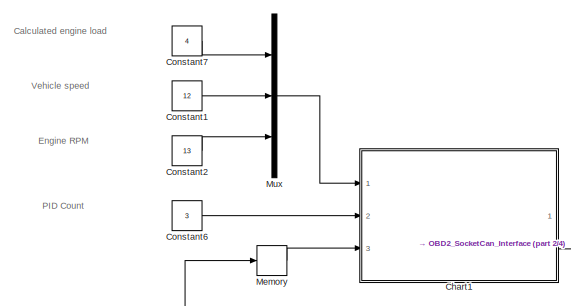
[diagram: root canvas - part 1/4, top left region]
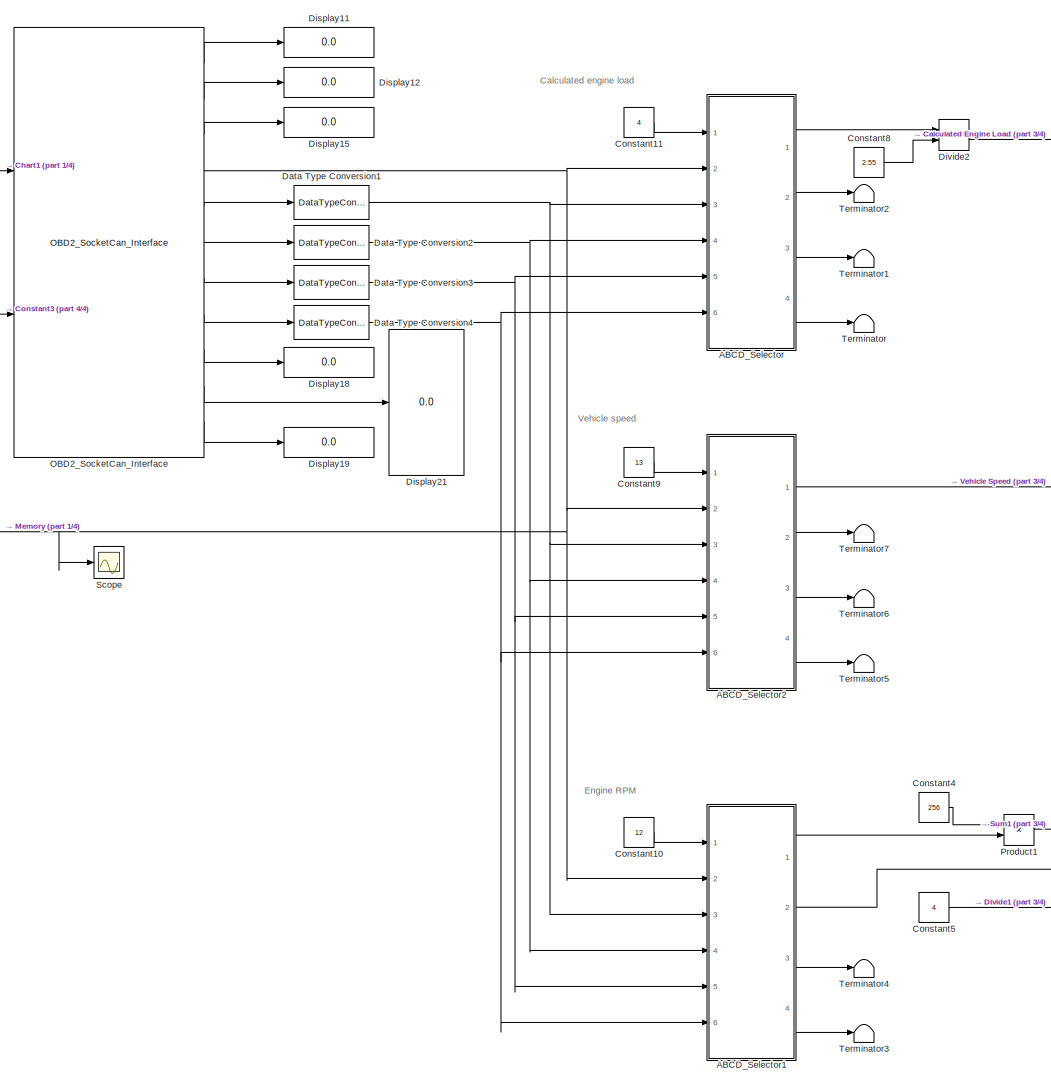
[diagram: root canvas - part 2/4, center side, full height]
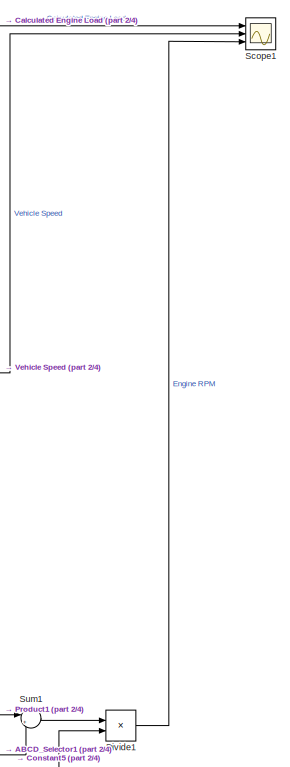
[diagram: root canvas - part 3/4, middle right region]
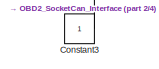
[diagram: root canvas - part 4/4, middle left region]
MODEL slx_8b4d651fdda3
KIND model
CONFIG AbsTol = auto
CONFIG EnableMultiTasking = on
CONFIG FixedStep = 0.01
CONFIG MaxStep = auto
CONFIG MinStep = auto
CONFIG RelTol = 1e-3
CONFIG SampleTimeConstraint = Unconstrained
CONFIG Solver = FixedStepAuto
CONFIG SolverName = FixedStepAuto
CONFIG StartTime = 0.0
CONFIG StopTime = inf
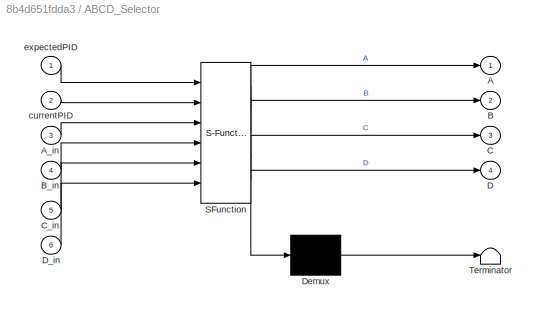
BLOCK [SubSystem] ABCD_Selector
  ErrorFcn = Stateflow.Translate.translate
  PermitHierarchicalResolution = ExplicitOnly
  Ports = [6, 4]
  RequestExecContextInheritance = off
  SFBlockType = MATLAB Function
  TreatAsAtomicUnit = on
  Variant = off
BLOCK [Demux] ABCD_Selector/ Demux 
  Outputs = 1
  Ports = [1, 1]
BLOCK [S-Function] ABCD_Selector/ SFunction 
  EnableBusSupport = on
  FunctionName = sf_sfun
  PortCounts = [6 5]
  Ports = [6, 5]
  SFcnIsStateOwnerBlock = off
  SFunctionDeploymentMode = off
  Tag = Stateflow S-Function Example_MultiPID 2
BLOCK [Terminator] ABCD_Selector/ Terminator 
BLOCK [Outport] ABCD_Selector/A
  IconDisplay = Port number
BLOCK [Inport] ABCD_Selector/A_in
  IconDisplay = Port number
  Port = 3
BLOCK [Outport] ABCD_Selector/B
  IconDisplay = Port number
  Port = 2
BLOCK [Inport] ABCD_Selector/B_in
  IconDisplay = Port number
  Port = 4
BLOCK [Outport] ABCD_Selector/C
  IconDisplay = Port number
  Port = 3
BLOCK [Inport] ABCD_Selector/C_in
  IconDisplay = Port number
  Port = 5
BLOCK [Outport] ABCD_Selector/D
  IconDisplay = Port number
  Port = 4
BLOCK [Inport] ABCD_Selector/D_in
  IconDisplay = Port number
  Port = 6
BLOCK [Inport] ABCD_Selector/currentPID
  IconDisplay = Port number
  Port = 2
BLOCK [Inport] ABCD_Selector/expectedPID
  IconDisplay = Port number
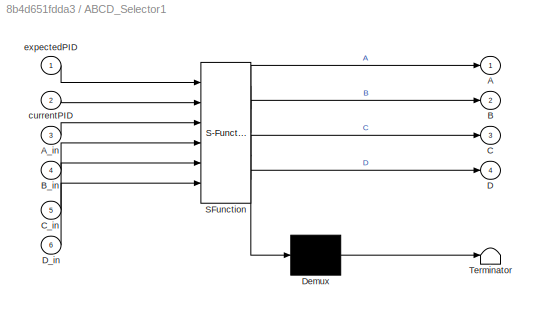
BLOCK [SubSystem] ABCD_Selector1
  ErrorFcn = Stateflow.Translate.translate
  PermitHierarchicalResolution = ExplicitOnly
  Ports = [6, 4]
  RequestExecContextInheritance = off
  SFBlockType = MATLAB Function
  TreatAsAtomicUnit = on
  Variant = off
BLOCK [Demux] ABCD_Selector1/ Demux 
  Outputs = 1
  Ports = [1, 1]
BLOCK [S-Function] ABCD_Selector1/ SFunction 
  EnableBusSupport = on
  FunctionName = sf_sfun
  PortCounts = [6 5]
  Ports = [6, 5]
  SFcnIsStateOwnerBlock = off
  SFunctionDeploymentMode = off
  Tag = Stateflow S-Function Example_MultiPID 3
BLOCK [Terminator] ABCD_Selector1/ Terminator 
BLOCK [Outport] ABCD_Selector1/A
  IconDisplay = Port number
BLOCK [Inport] ABCD_Selector1/A_in
  IconDisplay = Port number
  Port = 3
BLOCK [Outport] ABCD_Selector1/B
  IconDisplay = Port number
  Port = 2
BLOCK [Inport] ABCD_Selector1/B_in
  IconDisplay = Port number
  Port = 4
BLOCK [Outport] ABCD_Selector1/C
  IconDisplay = Port number
  Port = 3
BLOCK [Inport] ABCD_Selector1/C_in
  IconDisplay = Port number
  Port = 5
BLOCK [Outport] ABCD_Selector1/D
  IconDisplay = Port number
  Port = 4
BLOCK [Inport] ABCD_Selector1/D_in
  IconDisplay = Port number
  Port = 6
BLOCK [Inport] ABCD_Selector1/currentPID
  IconDisplay = Port number
  Port = 2
BLOCK [Inport] ABCD_Selector1/expectedPID
  IconDisplay = Port number
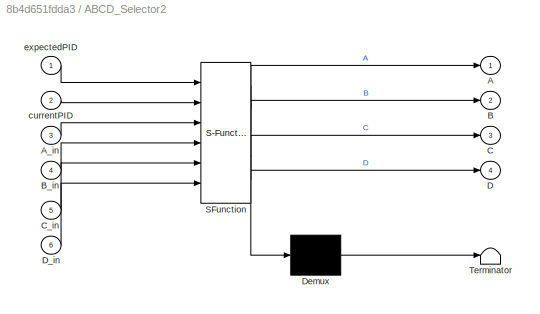
BLOCK [SubSystem] ABCD_Selector2
  ErrorFcn = Stateflow.Translate.translate
  PermitHierarchicalResolution = ExplicitOnly
  Ports = [6, 4]
  RequestExecContextInheritance = off
  SFBlockType = MATLAB Function
  TreatAsAtomicUnit = on
  Variant = off
BLOCK [Demux] ABCD_Selector2/ Demux 
  Outputs = 1
  Ports = [1, 1]
BLOCK [S-Function] ABCD_Selector2/ SFunction 
  EnableBusSupport = on
  FunctionName = sf_sfun
  PortCounts = [6 5]
  Ports = [6, 5]
  SFcnIsStateOwnerBlock = off
  SFunctionDeploymentMode = off
  Tag = Stateflow S-Function Example_MultiPID 4
BLOCK [Terminator] ABCD_Selector2/ Terminator 
BLOCK [Outport] ABCD_Selector2/A
  IconDisplay = Port number
BLOCK [Inport] ABCD_Selector2/A_in
  IconDisplay = Port number
  Port = 3
BLOCK [Outport] ABCD_Selector2/B
  IconDisplay = Port number
  Port = 2
BLOCK [Inport] ABCD_Selector2/B_in
  IconDisplay = Port number
  Port = 4
BLOCK [Outport] ABCD_Selector2/C
  IconDisplay = Port number
  Port = 3
BLOCK [Inport] ABCD_Selector2/C_in
  IconDisplay = Port number
  Port = 5
BLOCK [Outport] ABCD_Selector2/D
  IconDisplay = Port number
  Port = 4
BLOCK [Inport] ABCD_Selector2/D_in
  IconDisplay = Port number
  Port = 6
BLOCK [Inport] ABCD_Selector2/currentPID
  IconDisplay = Port number
  Port = 2
BLOCK [Inport] ABCD_Selector2/expectedPID
  IconDisplay = Port number
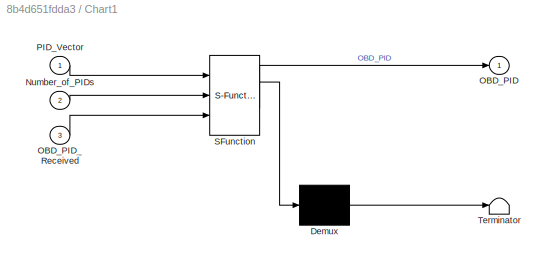
BLOCK [SubSystem] Chart1
  ErrorFcn = Stateflow.Translate.translate
  PermitHierarchicalResolution = ExplicitOnly
  Ports = [3, 1]
  RequestExecContextInheritance = off
  SFBlockType = Chart
  TreatAsAtomicUnit = on
  Variant = off
BLOCK [Demux] Chart1/ Demux 
  Outputs = 1
  Ports = [1, 1]
BLOCK [S-Function] Chart1/ SFunction 
  EnableBusSupport = on
  FunctionName = sf_sfun
  PortCounts = [3 2]
  Ports = [3, 2]
  SFcnIsStateOwnerBlock = off
  SFunctionDeploymentMode = off
  Tag = Stateflow S-Function Example_MultiPID 1
BLOCK [Terminator] Chart1/ Terminator 
BLOCK [Inport] Chart1/Number_of_PIDs
  IconDisplay = Port number
  Port = 2
BLOCK [Outport] Chart1/OBD_PID
  IconDisplay = Port number
BLOCK [Inport] Chart1/OBD_PID_Received
  IconDisplay = Port number
  Port = 3
BLOCK [Inport] Chart1/PID_Vector
  IconDisplay = Port number
BLOCK [Constant] Constant1
  OutDataTypeStr = uint8
  SampleTime = -1
  Value = 12
BLOCK [Constant] Constant10
  OutDataTypeStr = uint8
  SampleTime = -1
  Value = 12
BLOCK [Constant] Constant11
  OutDataTypeStr = uint8
  SampleTime = -1
  Value = 4
BLOCK [Constant] Constant2
  OutDataTypeStr = uint8
  SampleTime = -1
  Value = 13
BLOCK [Constant] Constant3
  OutDataTypeStr = uint8
  SampleTime = -1
BLOCK [Constant] Constant4
  SampleTime = -1
  Value = 256
BLOCK [Constant] Constant5
  SampleTime = -1
  Value = 4
BLOCK [Constant] Constant6
  OutDataTypeStr = uint8
  SampleTime = -1
  Value = 3
BLOCK [Constant] Constant7
  OutDataTypeStr = uint8
  SampleTime = -1
  Value = 4
BLOCK [Constant] Constant8
  SampleTime = -1
  Value = 2.55
BLOCK [Constant] Constant9
  OutDataTypeStr = uint8
  SampleTime = -1
  Value = 13
BLOCK [DataTypeConversion] Data Type Conversion1
  OutDataTypeStr = double
  RndMeth = Floor
  SaturateOnIntegerOverflow = off
BLOCK [DataTypeConversion] Data Type Conversion2
  OutDataTypeStr = double
  RndMeth = Floor
  SaturateOnIntegerOverflow = off
BLOCK [DataTypeConversion] Data Type Conversion3
  OutDataTypeStr = double
  RndMeth = Floor
  SaturateOnIntegerOverflow = off
BLOCK [DataTypeConversion] Data Type Conversion4
  OutDataTypeStr = double
  RndMeth = Floor
  SaturateOnIntegerOverflow = off
BLOCK [Display] Display11
  Decimation = 1
  Format = hex (Stored Integer)
  Ports = [1]
BLOCK [Display] Display12
  Decimation = 1
  Ports = [1]
BLOCK [Display] Display15
  Decimation = 1
  Ports = [1]
BLOCK [Display] Display18
  Decimation = 1
  Format = long
  Ports = [1]
BLOCK [Display] Display19
  Decimation = 1
  Ports = [1]
BLOCK [Display] Display21
  Decimation = 1
  Ports = [1]
BLOCK [Product] Divide1
  InputSameDT = off
  Inputs = */
  OutDataTypeStr = Inherit: Inherit via internal rule
  Ports = [2, 1]
  RndMeth = Floor
  SaturateOnIntegerOverflow = off
BLOCK [Product] Divide2
  InputSameDT = off
  Inputs = */
  OutDataTypeStr = Inherit: Inherit via internal rule
  Ports = [2, 1]
  RndMeth = Floor
  SaturateOnIntegerOverflow = off
BLOCK [Memory] Memory
BLOCK [Mux] Mux
  DisplayOption = bar
  Inputs = 3
  Ports = [3, 1]
BLOCK [Reference] OBD2_SocketCan_Interface  REF=OBD2_SocketCan_Library/OBD2_SocketCan_Interface
  Ports = [2, 11]
  SourceBlock = OBD2_SocketCan_Library/OBD2_SocketCan_Interface
  SourceProductName = OBD2 SocketCan Interface
  SourceType = Linux SocketCan OBD2 CAN bus Block
BLOCK [Product] Product1
  InputSameDT = off
  OutDataTypeStr = Inherit: Inherit via internal rule
  Ports = [2, 1]
  RndMeth = Floor
  SaturateOnIntegerOverflow = off
BLOCK [Scope] Scope
  NumInputPorts = 1
  Ports = [1]
  ScopeSpecificationString = Simulink.scopes.TimeScopeBlockCfg('CurrentConfiguration', extmgr.ConfigurationSet(extmgr.Configuration('Core','General UI',true),extmgr.Configuration('Core','Source UI',true),extmgr.Configuration('Sources','WiredSimulink',true,'DataLoggingVariableName','ScopeData1'),extmgr.Configuration('Visuals','Time Domain',true,'SerializedDisplays',{struct('MinYLimReal','3.00000','MaxYLimReal','5.00000','YLabe...<+1393ch>
BLOCK [Scope] Scope1
  NumInputPorts = 3
  Ports = [3]
  ScopeSpecificationString = Simulink.scopes.TimeScopeBlockCfg('CurrentConfiguration', extmgr.ConfigurationSet(extmgr.Configuration('Core','General UI',true),extmgr.Configuration('Core','Source UI',true),extmgr.Configuration('Sources','WiredSimulink',true,'DataLoggingVariableName','ScopeLog','DataLogging',true),extmgr.Configuration('Visuals','Time Domain',true,'SerializedDisplays',{struct('MinYLimReal','-10.125','MaxYLimReal'...<+1502ch>
BLOCK [Sum] Sum1
  IconShape = round
  InputSameDT = off
  Inputs = |++
  OutDataTypeStr = Inherit: Inherit via internal rule
  Ports = [2, 1]
  SaturateOnIntegerOverflow = off
BLOCK [Terminator] Terminator
BLOCK [Terminator] Terminator1
BLOCK [Terminator] Terminator2
BLOCK [Terminator] Terminator3
BLOCK [Terminator] Terminator4
BLOCK [Terminator] Terminator5
BLOCK [Terminator] Terminator6
BLOCK [Terminator] Terminator7
ANNOTATION (root): Engine RPM
ANNOTATION (root): PID Count
ANNOTATION (root): Vehicle speed
ANNOTATION (root): Calculated engine load
LINE ABCD_Selector1:1 -> Product1:2
LINE ABCD_Selector1:2 -> Sum1:2
LINE ABCD_Selector1:3 -> Terminator4:1
LINE ABCD_Selector1:4 -> Terminator3:1
LINE ABCD_Selector2:1 -> Scope1:2
LINE ABCD_Selector2:2 -> Terminator7:1
LINE ABCD_Selector2:3 -> Terminator6:1
LINE ABCD_Selector2:4 -> Terminator5:1
LINE ABCD_Selector:1 -> Divide2:1
LINE ABCD_Selector:2 -> Terminator2:1
LINE ABCD_Selector:3 -> Terminator1:1
LINE ABCD_Selector:4 -> Terminator:1
LINE Chart1:1 -> OBD2_SocketCan_Interface:1
LINE Constant10:1 -> ABCD_Selector1:1
LINE Constant11:1 -> ABCD_Selector:1
LINE Constant1:1 -> Mux:2
LINE Constant2:1 -> Mux:3
LINE Constant3:1 -> OBD2_SocketCan_Interface:2
LINE Constant4:1 -> Product1:1
LINE Constant5:1 -> Divide1:2
LINE Constant6:1 -> Chart1:2
LINE Constant7:1 -> Mux:1
LINE Constant8:1 -> Divide2:2
LINE Constant9:1 -> ABCD_Selector2:1
NET Data Type Conversion1:1 -> ABCD_Selector1:3, ABCD_Selector2:3, ABCD_Selector:3
NET Data Type Conversion2:1 -> ABCD_Selector1:4, ABCD_Selector2:4, ABCD_Selector:4
NET Data Type Conversion3:1 -> ABCD_Selector1:5, ABCD_Selector2:5, ABCD_Selector:5
NET Data Type Conversion4:1 -> ABCD_Selector1:6, ABCD_Selector2:6, ABCD_Selector:6
LINE Divide1:1 -> Scope1:3
LINE Divide2:1 -> Scope1:1
LINE Memory:1 -> Chart1:3
LINE Mux:1 -> Chart1:1
LINE OBD2_SocketCan_Interface:1 -> Display11:1
LINE OBD2_SocketCan_Interface:10 -> Display21:1
LINE OBD2_SocketCan_Interface:11 -> Display19:1
LINE OBD2_SocketCan_Interface:2 -> Display12:1
LINE OBD2_SocketCan_Interface:3 -> Display15:1
NET OBD2_SocketCan_Interface:4 -> ABCD_Selector1:2, ABCD_Selector2:2, ABCD_Selector:2, Memory:1, Scope:1
LINE OBD2_SocketCan_Interface:5 -> Data Type Conversion1:1
LINE OBD2_SocketCan_Interface:6 -> Data Type Conversion2:1
LINE OBD2_SocketCan_Interface:7 -> Data Type Conversion3:1
LINE OBD2_SocketCan_Interface:8 -> Data Type Conversion4:1
LINE OBD2_SocketCan_Interface:9 -> Display18:1
LINE Product1:1 -> Sum1:1
LINE Sum1:1 -> Divide1:1
note: NET lines group one-source signal fan-out (src -> all destinations, sorted); 1:1 wires keep LINE
CHART Chart1 states=3 transitions=6
  STATE_LABEL 'INIT\nentry: currentPID = PID_Vector(1);\n OBD_PID = currentPID;\n pidCount = 1;\n'
  STATE_LABEL 'ResetCount\nentry: pidCount = 1;\n OBD_PID = PID_Vector(pidCount);'
  STATE_LABEL 'ChangePID\nentry:  pidCount = pidCount + 1;\n  OBD_PID = PID_Vector(pidCount);\n'
CHART ABCD_Selector states=1 transitions=1
  STATE_LABEL 'eML_blk_kernel()'
  STATE_LABEL 'SCRIPT:\nfunction [A,B,C,D]= fcn(expectedPID, currentPID, A_in , B_in, C_in, D_in)\n\n% persistent variables\npersistent A_OLD\npersistent B_OLD\npersistent C_OLD\npersistent D_OLD\n\n% variable init\nif isempty(A_OLD)\n\tA_OLD = 0;\n    B_OLD = 0;\n    C_OLD = 0;\n    D_OLD = 0;\nend\n\n% Use new data if available\nif currentPID == expectedPID \n    A_OLD = A_in;\n    B_OLD = B_in;\n    C_OLD = C_in;\n    D_OLD = D_in;...<+61ch>'  <repeated x3 — deduplicated; at blocks: ABCD_Selector, ABCD_Selector1, ABCD_Selector2>
CHART ABCD_Selector1 states=1 transitions=1
  STATE_LABEL 'eML_blk_kernel()'
CHART ABCD_Selector2 states=1 transitions=1
  STATE_LABEL 'eML_blk_kernel()'
